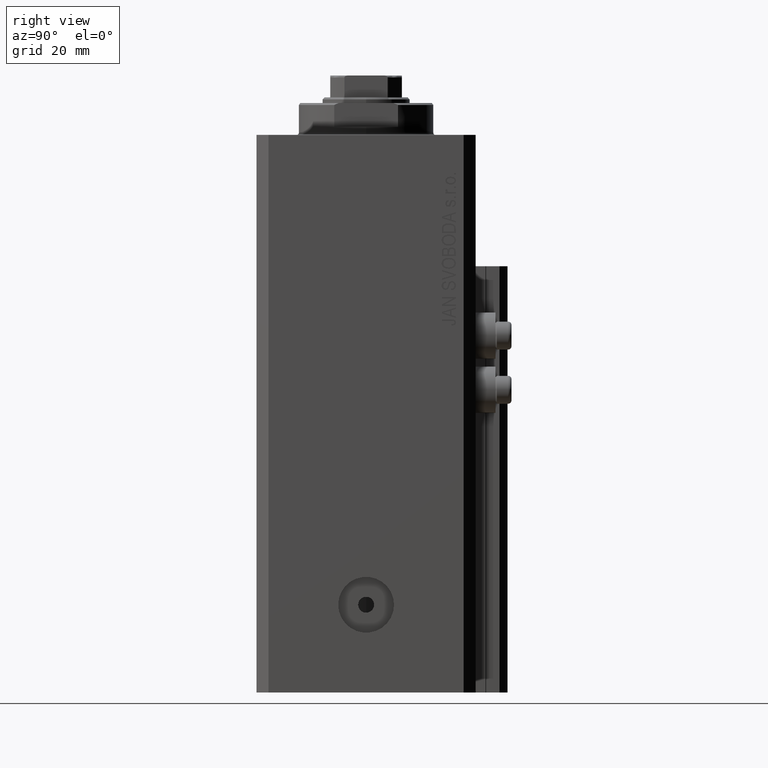
[diagram: clean part render]
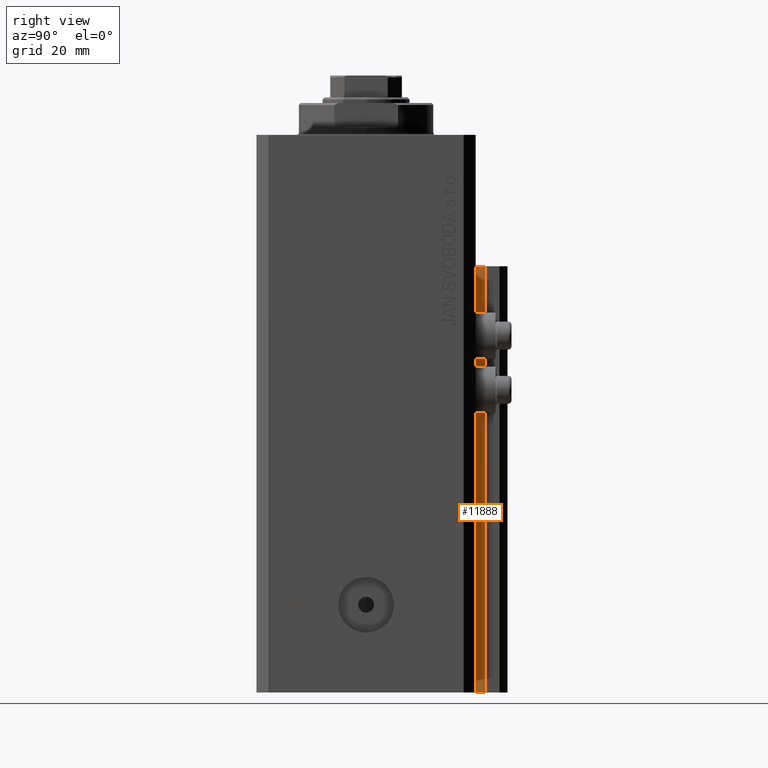
[diagram: same view with one face highlighted and labeled with its STEP entity id]
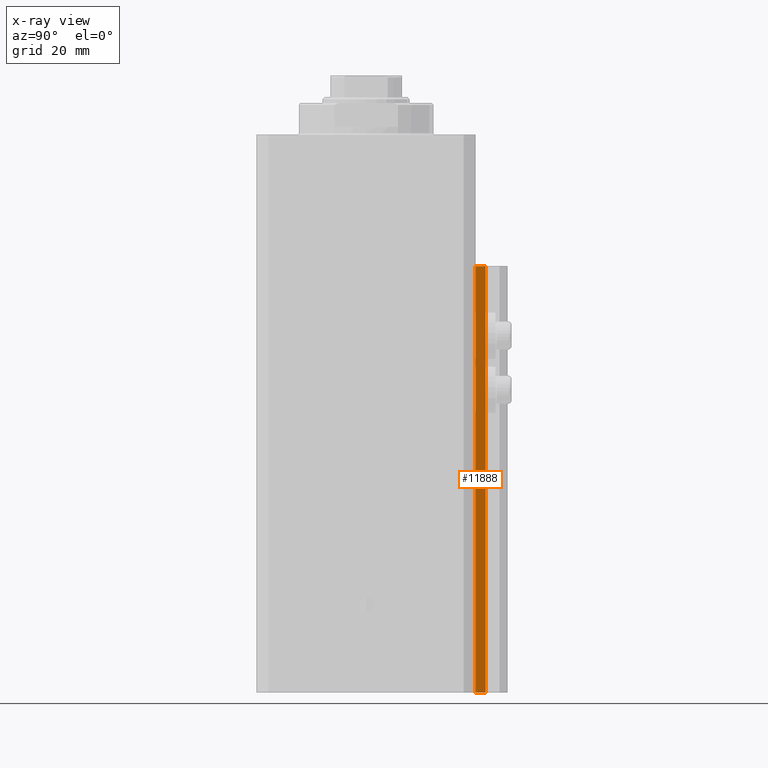
[diagram: x-ray of the same camera — body ghosted, the highlighted face saturated]
A machine part, right view. The second image highlights one B-rep face of the part: STEP entity #11888.
The next image is the same camera in x-ray: the body ghosted, the highlighted face saturated — about 0% of this face is hidden behind the body in this view.
In plain terms, the highlighted planar face has unit normal (1, 0, 0).
Its self-contained STEP definition (entity closure, byte-faithful):
#2083 = VERTEX_POINT ( 'NONE', #3538 ) ;
#2145 = CARTESIAN_POINT ( 'NONE',  ( 14.49999999999999645, 30.00000000000002487, -140.0000000000000000 ) ) ;
#3538 = CARTESIAN_POINT ( 'NONE',  ( 14.49999999999999645, 30.00000000000002487, -33.00000000000000000 ) ) ;
#4004 = DIRECTION ( 'NONE',  ( 0.000000000000000000, 0.000000000000000000, 1.000000000000000000 ) ) ;
#4163 = EDGE_LOOP ( 'NONE', ( #15127, #7722, #19830, #27499 ) ) ;
#4374 = CARTESIAN_POINT ( 'NONE',  ( 14.49999999999999645, 27.50000000000000355, -140.0000000000000000 ) ) ;
#5390 = DIRECTION ( 'NONE',  ( 0.000000000000000000, 0.000000000000000000, -1.000000000000000000 ) ) ;
#7722 = ORIENTED_EDGE ( 'NONE', *, *, #36912, .F. ) ;
#7821 = DIRECTION ( 'NONE',  ( 0.000000000000000000, 0.000000000000000000, 1.000000000000000000 ) ) ;
#8059 = CARTESIAN_POINT ( 'NONE',  ( 14.49999999999999645, 30.00000000000002487, -140.0000000000000000 ) ) ;
#9183 = CARTESIAN_POINT ( 'NONE',  ( 14.49999999999999645, 27.50000000000000355, -33.00000000000000000 ) ) ;
#11888 = ADVANCED_FACE ( 'NONE', ( #24238 ), #41932, .T. ) ;
#14514 = LINE ( 'NONE', #36732, #42257 ) ;
#14798 = EDGE_CURVE ( 'NONE', #34006, #2083, #16574, .T. ) ;
#15127 = ORIENTED_EDGE ( 'NONE', *, *, #14798, .F. ) ;
#16574 = LINE ( 'NONE', #9183, #19709 ) ;
#19709 = VECTOR ( 'NONE', #24211, 1000.000000000000000 ) ;
#19830 = ORIENTED_EDGE ( 'NONE', *, *, #31298, .T. ) ;
#21360 = VECTOR ( 'NONE', #7821, 1000.000000000000000 ) ;
#21482 = EDGE_CURVE ( 'NONE', #47114, #2083, #26675, .T. ) ;
#22751 = DIRECTION ( 'NONE',  ( 0.000000000000000000, 1.000000000000000000, 0.000000000000000000 ) ) ;
#24211 = DIRECTION ( 'NONE',  ( 0.000000000000000000, 1.000000000000000000, 0.000000000000000000 ) ) ;
#24238 = FACE_OUTER_BOUND ( 'NONE', #4163, .T. ) ;
#25949 = CARTESIAN_POINT ( 'NONE',  ( 14.49999999999999645, 27.50000000000000355, -33.00000000000000000 ) ) ;
#26675 = LINE ( 'NONE', #8059, #21360 ) ;
#27499 = ORIENTED_EDGE ( 'NONE', *, *, #21482, .T. ) ;
#29279 = VECTOR ( 'NONE', #22751, 1000.000000000000000 ) ;
#31298 = EDGE_CURVE ( 'NONE', #35711, #47114, #41158, .T. ) ;
#31309 = CARTESIAN_POINT ( 'NONE',  ( 14.49999999999999645, 27.50000000000000355, -140.0000000000000000 ) ) ;
#34006 = VERTEX_POINT ( 'NONE', #25949 ) ;
#35711 = VERTEX_POINT ( 'NONE', #31309 ) ;
#36732 = CARTESIAN_POINT ( 'NONE',  ( 14.49999999999999645, 27.50000000000000355, -140.0000000000000000 ) ) ;
#36912 = EDGE_CURVE ( 'NONE', #35711, #34006, #14514, .T. ) ;
#38818 = CARTESIAN_POINT ( 'NONE',  ( 14.49999999999999645, 27.50000000000000355, -140.0000000000000000 ) ) ;
#41158 = LINE ( 'NONE', #4374, #29279 ) ;
#41932 = PLANE ( 'NONE',  #44040 ) ;
#42257 = VECTOR ( 'NONE', #4004, 1000.000000000000000 ) ;
#44040 = AXIS2_PLACEMENT_3D ( 'NONE', #38818, #45524, #5390 ) ;
#45524 = DIRECTION ( 'NONE',  ( 1.000000000000000000, 0.000000000000000000, 0.000000000000000000 ) ) ;
#47114 = VERTEX_POINT ( 'NONE', #2145 ) ;